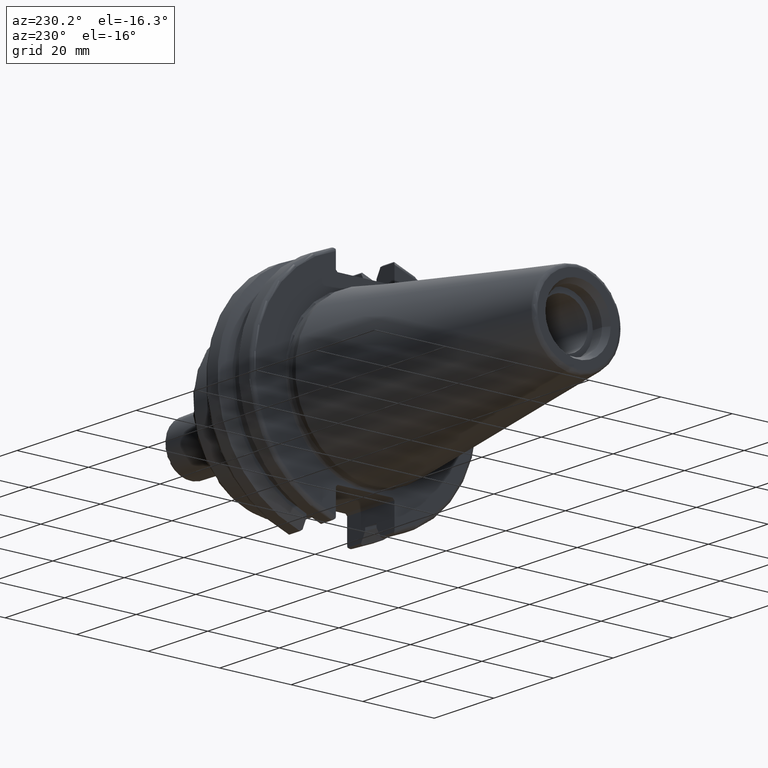
[diagram: clean part render]
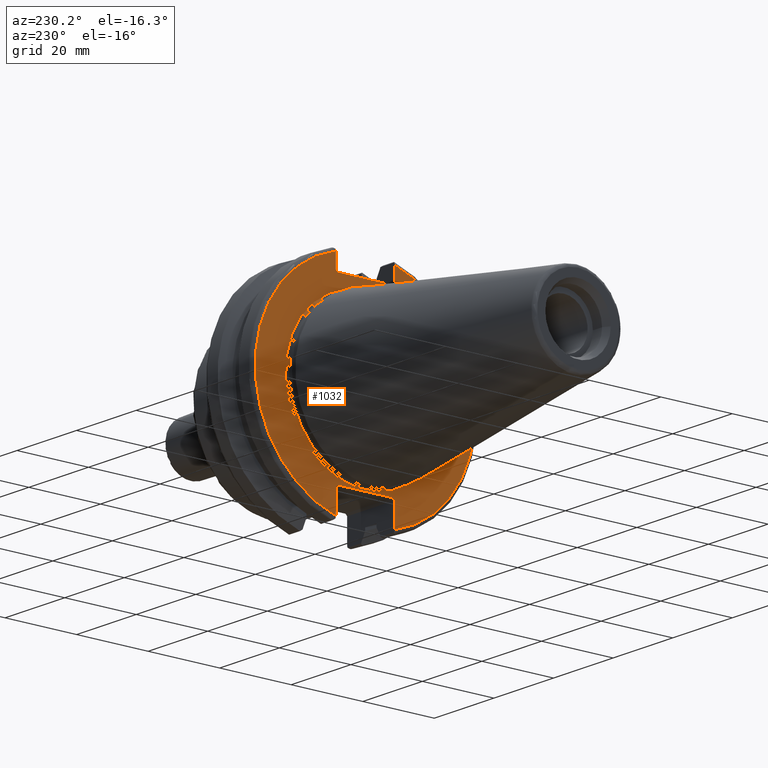
[diagram: same view with one face highlighted and labeled with its STEP entity id]
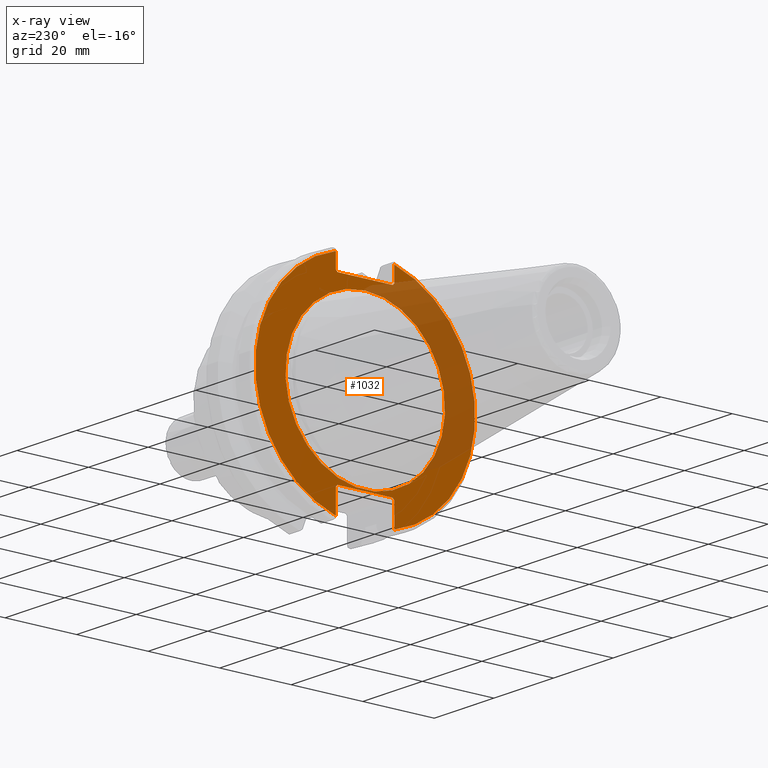
[diagram: x-ray of the same camera — body ghosted, the highlighted face saturated]
A machine part, auxiliary view. The second image highlights one B-rep face of the part: STEP entity #1032.
The next image is the same camera in x-ray: the body ghosted, the highlighted face saturated — about 33% of this face is hidden behind the body in this view.
In plain terms, the highlighted planar face has unit normal (-1, 0, 0).
Its self-contained STEP definition (entity closure, byte-faithful):
#43=FACE_BOUND('',#303,.T.);
#49=PLANE('',#1140);
#81=LINE('',#1606,#151);
#82=LINE('',#1608,#152);
#83=LINE('',#1610,#153);
#84=LINE('',#1612,#154);
#85=LINE('',#1614,#155);
#86=LINE('',#1618,#156);
#87=LINE('',#1620,#157);
#88=LINE('',#1622,#158);
#89=LINE('',#1624,#159);
#90=LINE('',#1625,#160);
#151=VECTOR('',#1305,10.);
#152=VECTOR('',#1306,10.);
#153=VECTOR('',#1307,10.);
#154=VECTOR('',#1308,10.);
#155=VECTOR('',#1309,10.);
#156=VECTOR('',#1312,10.);
#157=VECTOR('',#1313,10.);
#158=VECTOR('',#1314,10.);
#159=VECTOR('',#1315,10.);
#160=VECTOR('',#1316,10.);
#240=FACE_OUTER_BOUND('',#302,.T.);
#302=EDGE_LOOP('',(#748,#749,#750,#751,#752,#753,#754,#755,#756,#757,#758,
#759));
#303=EDGE_LOOP('',(#760));
#394=CIRCLE('',#1138,22.3);
#396=CIRCLE('',#1141,30.75);
#397=CIRCLE('',#1142,30.75);
#448=VERTEX_POINT('',#1597);
#449=VERTEX_POINT('',#1602);
#450=VERTEX_POINT('',#1603);
#451=VERTEX_POINT('',#1605);
#452=VERTEX_POINT('',#1607);
#453=VERTEX_POINT('',#1609);
#454=VERTEX_POINT('',#1611);
#455=VERTEX_POINT('',#1613);
#456=VERTEX_POINT('',#1615);
#457=VERTEX_POINT('',#1617);
#458=VERTEX_POINT('',#1619);
#459=VERTEX_POINT('',#1621);
#460=VERTEX_POINT('',#1623);
#562=EDGE_CURVE('',#448,#448,#394,.T.);
#564=EDGE_CURVE('',#449,#450,#396,.T.);
#565=EDGE_CURVE('',#449,#451,#81,.T.);
#566=EDGE_CURVE('',#452,#451,#82,.T.);
#567=EDGE_CURVE('',#452,#453,#83,.T.);
#568=EDGE_CURVE('',#454,#453,#84,.T.);
#569=EDGE_CURVE('',#454,#455,#85,.T.);
#570=EDGE_CURVE('',#456,#455,#397,.T.);
#571=EDGE_CURVE('',#456,#457,#86,.T.);
#572=EDGE_CURVE('',#458,#457,#87,.T.);
#573=EDGE_CURVE('',#458,#459,#88,.T.);
#574=EDGE_CURVE('',#460,#459,#89,.T.);
#575=EDGE_CURVE('',#460,#450,#90,.T.);
#748=ORIENTED_EDGE('',*,*,#564,.F.);
#749=ORIENTED_EDGE('',*,*,#565,.T.);
#750=ORIENTED_EDGE('',*,*,#566,.F.);
#751=ORIENTED_EDGE('',*,*,#567,.T.);
#752=ORIENTED_EDGE('',*,*,#568,.F.);
#753=ORIENTED_EDGE('',*,*,#569,.T.);
#754=ORIENTED_EDGE('',*,*,#570,.F.);
#755=ORIENTED_EDGE('',*,*,#571,.T.);
#756=ORIENTED_EDGE('',*,*,#572,.F.);
#757=ORIENTED_EDGE('',*,*,#573,.T.);
#758=ORIENTED_EDGE('',*,*,#574,.F.);
#759=ORIENTED_EDGE('',*,*,#575,.T.);
#760=ORIENTED_EDGE('',*,*,#562,.F.);
#1032=ADVANCED_FACE('',(#240,#43),#49,.T.);
#1138=AXIS2_PLACEMENT_3D('',#1599,#1297,#1298);
#1140=AXIS2_PLACEMENT_3D('',#1601,#1301,#1302);
#1141=AXIS2_PLACEMENT_3D('',#1604,#1303,#1304);
#1142=AXIS2_PLACEMENT_3D('',#1616,#1310,#1311);
#1297=DIRECTION('center_axis',(-1.,0.,0.));
#1298=DIRECTION('ref_axis',(0.,-1.,1.83697019872103E-16));
#1301=DIRECTION('center_axis',(-1.,0.,0.));
#1302=DIRECTION('ref_axis',(0.,0.,1.));
#1303=DIRECTION('center_axis',(1.,0.,0.));
#1304=DIRECTION('ref_axis',(0.,-1.,1.60812264967664E-16));
#1305=DIRECTION('',(0.,0.,-1.));
#1306=DIRECTION('',(0.,-0.70710678118655,0.707106781186545));
#1307=DIRECTION('',(0.,1.,0.));
#1308=DIRECTION('',(0.,-0.707106781186549,-0.707106781186546));
#1309=DIRECTION('',(0.,0.,1.));
#1310=DIRECTION('center_axis',(1.,0.,0.));
#1311=DIRECTION('ref_axis',(0.,1.,1.60812264967664E-16));
#1312=DIRECTION('',(0.,0.,1.));
#1313=DIRECTION('',(0.,0.707106781186549,-0.707106781186546));
#1314=DIRECTION('',(0.,-1.,0.));
#1315=DIRECTION('',(0.,0.707106781186549,0.707106781186546));
#1316=DIRECTION('',(0.,0.,-1.));
#1597=CARTESIAN_POINT('',(3.175,-2.7309623620986E-15,22.3));
#1599=CARTESIAN_POINT('Origin',(3.175,0.,0.));
#1601=CARTESIAN_POINT('Origin',(3.175,31.75,0.));
#1602=CARTESIAN_POINT('',(3.175,-8.18999999999999,29.6392712461019));
#1603=CARTESIAN_POINT('',(3.175,-8.19,-29.6392712461019));
#1604=CARTESIAN_POINT('Origin',(3.175,0.,0.));
#1605=CARTESIAN_POINT('',(3.175,-8.18999999999999,25.5));
#1606=CARTESIAN_POINT('',(3.175,-8.18999999999999,12.5));
#1607=CARTESIAN_POINT('',(3.175,-7.68999999999999,25.));
#1608=CARTESIAN_POINT('',(3.175,8.29500000000007,9.01500000000004));
#1609=CARTESIAN_POINT('',(3.175,7.69,25.));
#1610=CARTESIAN_POINT('',(3.175,15.875,25.));
#1611=CARTESIAN_POINT('',(3.175,8.19,25.5));
#1612=CARTESIAN_POINT('',(3.175,7.58000000000002,24.89));
#1613=CARTESIAN_POINT('',(3.175,8.19,29.6392712461019));
#1614=CARTESIAN_POINT('',(3.175,8.19,12.5));
#1615=CARTESIAN_POINT('',(3.175,8.18999999999999,-29.6392712461019));
#1616=CARTESIAN_POINT('Origin',(3.175,0.,0.));
#1617=CARTESIAN_POINT('',(3.175,8.18999999999999,-23.1));
#1618=CARTESIAN_POINT('',(3.175,8.18999999999999,-11.3));
#1619=CARTESIAN_POINT('',(3.175,7.69,-22.6));
#1620=CARTESIAN_POINT('',(3.175,8.18000000000002,-23.09));
#1621=CARTESIAN_POINT('',(3.175,-7.69,-22.6));
#1622=CARTESIAN_POINT('',(3.175,15.875,-22.6));
#1623=CARTESIAN_POINT('',(3.175,-8.19,-23.1));
#1624=CARTESIAN_POINT('',(3.175,7.69500000000004,-7.21500000000002));
#1625=CARTESIAN_POINT('',(3.175,-8.19,-11.3));